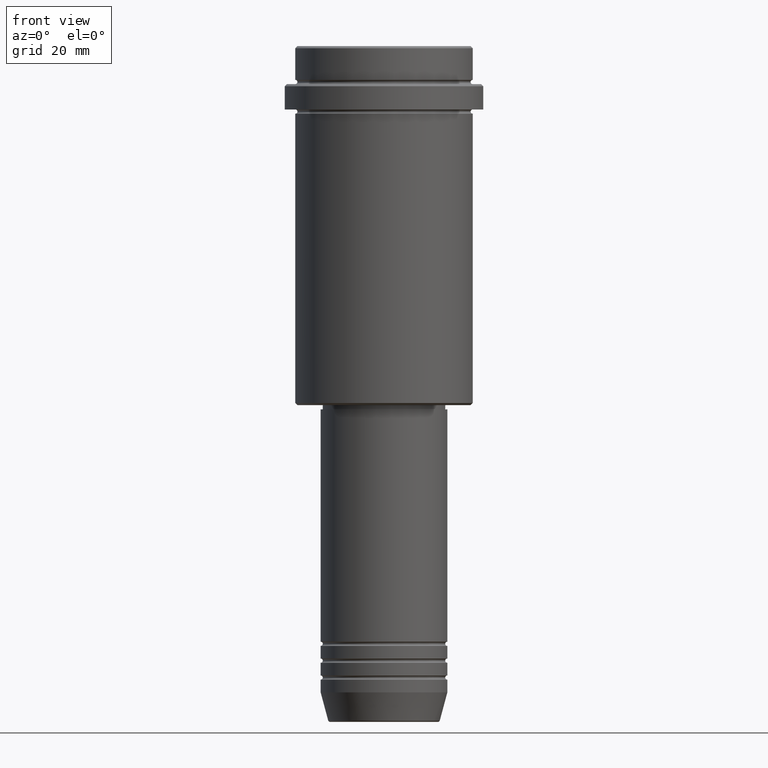
[diagram: clean part render]
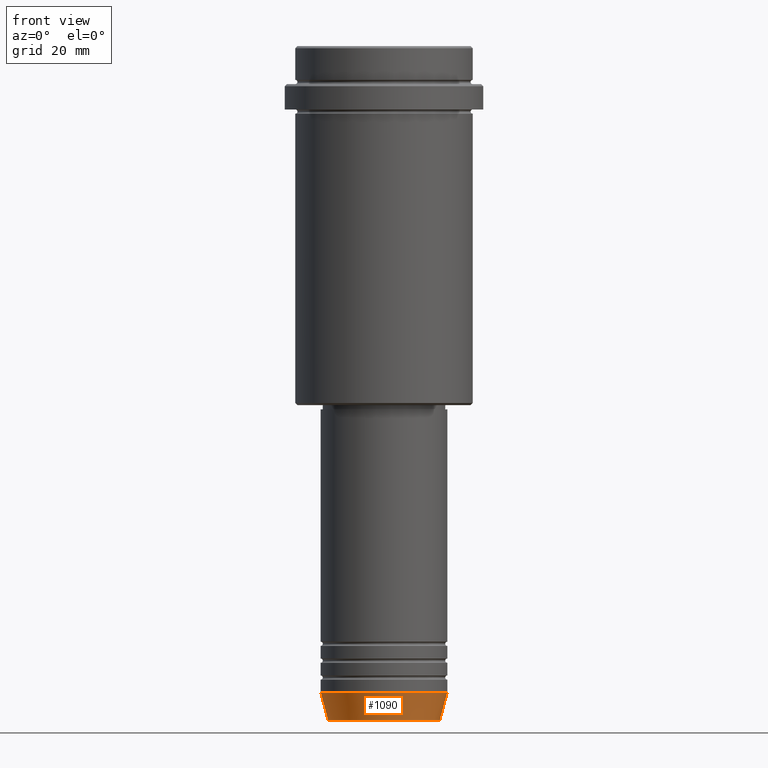
[diagram: same view with one face highlighted and labeled with its STEP entity id]
A machine part, front view. The second image highlights one B-rep face of the part: STEP entity #1090.
In plain terms, the highlighted conical surface has half-angle 15 deg.
Its self-contained STEP definition (entity closure, byte-faithful):
#2 = AXIS2_PLACEMENT_3D ( 'NONE', #151, #1229, #1145 ) ;
#63 = EDGE_CURVE ( 'NONE', #1213, #891, #1049, .T. ) ;
#103 = CARTESIAN_POINT ( 'NONE',  ( 15.00000000000000000, 0.000000000000000000, -153.0000000000000000 ) ) ;
#151 = CARTESIAN_POINT ( 'NONE',  ( 0.000000000000000000, 0.000000000000000000, -159.6294095225512422 ) ) ;
#171 = ORIENTED_EDGE ( 'NONE', *, *, #1095, .T. ) ;
#174 = DIRECTION ( 'NONE',  ( 1.000000000000000000, 0.000000000000000000, 0.000000000000000000 ) ) ;
#334 = ORIENTED_EDGE ( 'NONE', *, *, #63, .F. ) ;
#345 = ORIENTED_EDGE ( 'NONE', *, *, #1390, .T. ) ;
#439 = DIRECTION ( 'NONE',  ( -0.2588190451025213501, 3.169619151431772337E-17, 0.9659258262890680902 ) ) ;
#443 = CARTESIAN_POINT ( 'NONE',  ( -15.00000000000000000, 1.836970198721029589E-15, -153.0000000000000000 ) ) ;
#617 = CARTESIAN_POINT ( 'NONE',  ( 13.22365507213718772, 0.000000000000000000, -159.6294095225512422 ) ) ;
#678 = CONICAL_SURFACE ( 'NONE', #1310, 15.00000000000000000, 0.2617993877991500740 ) ;
#684 = DIRECTION ( 'NONE',  ( -0.000000000000000000, -0.000000000000000000, 1.000000000000000000 ) ) ;
#724 = VECTOR ( 'NONE', #439, 1000.000000000000000 ) ;
#786 = CARTESIAN_POINT ( 'NONE',  ( 0.000000000000000000, 0.000000000000000000, -153.0000000000000000 ) ) ;
#789 = DIRECTION ( 'NONE',  ( 0.2588190451025213501, 0.000000000000000000, 0.9659258262890680902 ) ) ;
#858 = VERTEX_POINT ( 'NONE', #862 ) ;
#862 = CARTESIAN_POINT ( 'NONE',  ( -13.22365507213718772, 1.728200442216588189E-15, -159.6294095225512422 ) ) ;
#868 = ORIENTED_EDGE ( 'NONE', *, *, #898, .F. ) ;
#891 = VERTEX_POINT ( 'NONE', #1200 ) ;
#898 = EDGE_CURVE ( 'NONE', #858, #1213, #1416, .T. ) ;
#912 = FACE_OUTER_BOUND ( 'NONE', #1055, .T. ) ;
#937 = CARTESIAN_POINT ( 'NONE',  ( -15.00000000000000000, 1.836970198721029589E-15, -153.0000000000000000 ) ) ;
#957 = AXIS2_PLACEMENT_3D ( 'NONE', #1268, #1154, #174 ) ;
#1048 = CIRCLE ( 'NONE', #2, 13.22365507213718772 ) ;
#1049 = CIRCLE ( 'NONE', #957, 15.00000000000000000 ) ;
#1055 = EDGE_LOOP ( 'NONE', ( #868, #171, #345, #334 ) ) ;
#1090 = ADVANCED_FACE ( 'NONE', ( #912 ), #678, .T. ) ;
#1095 = EDGE_CURVE ( 'NONE', #858, #1146, #1048, .T. ) ;
#1135 = DIRECTION ( 'NONE',  ( 1.000000000000000000, 0.000000000000000000, 0.000000000000000000 ) ) ;
#1145 = DIRECTION ( 'NONE',  ( 1.000000000000000000, 0.000000000000000000, 0.000000000000000000 ) ) ;
#1146 = VERTEX_POINT ( 'NONE', #617 ) ;
#1154 = DIRECTION ( 'NONE',  ( -0.000000000000000000, -0.000000000000000000, 1.000000000000000000 ) ) ;
#1169 = VECTOR ( 'NONE', #789, 1000.000000000000000 ) ;
#1200 = CARTESIAN_POINT ( 'NONE',  ( 15.00000000000000000, 0.000000000000000000, -153.0000000000000000 ) ) ;
#1213 = VERTEX_POINT ( 'NONE', #937 ) ;
#1219 = LINE ( 'NONE', #103, #1169 ) ;
#1229 = DIRECTION ( 'NONE',  ( -0.000000000000000000, -0.000000000000000000, 1.000000000000000000 ) ) ;
#1268 = CARTESIAN_POINT ( 'NONE',  ( 0.000000000000000000, 0.000000000000000000, -153.0000000000000000 ) ) ;
#1310 = AXIS2_PLACEMENT_3D ( 'NONE', #786, #684, #1135 ) ;
#1390 = EDGE_CURVE ( 'NONE', #1146, #891, #1219, .T. ) ;
#1416 = LINE ( 'NONE', #443, #724 ) ;